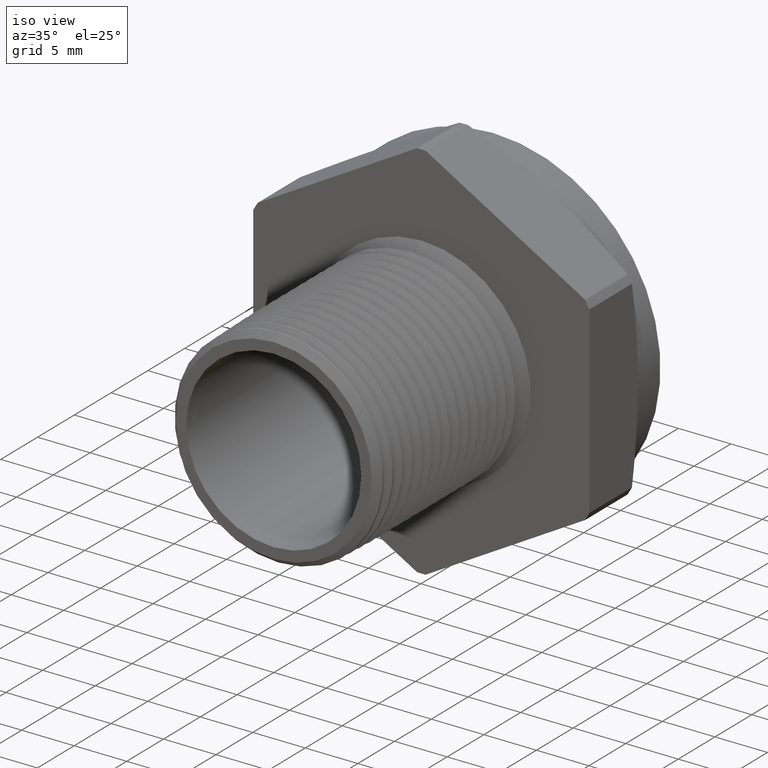
[diagram: clean part render]
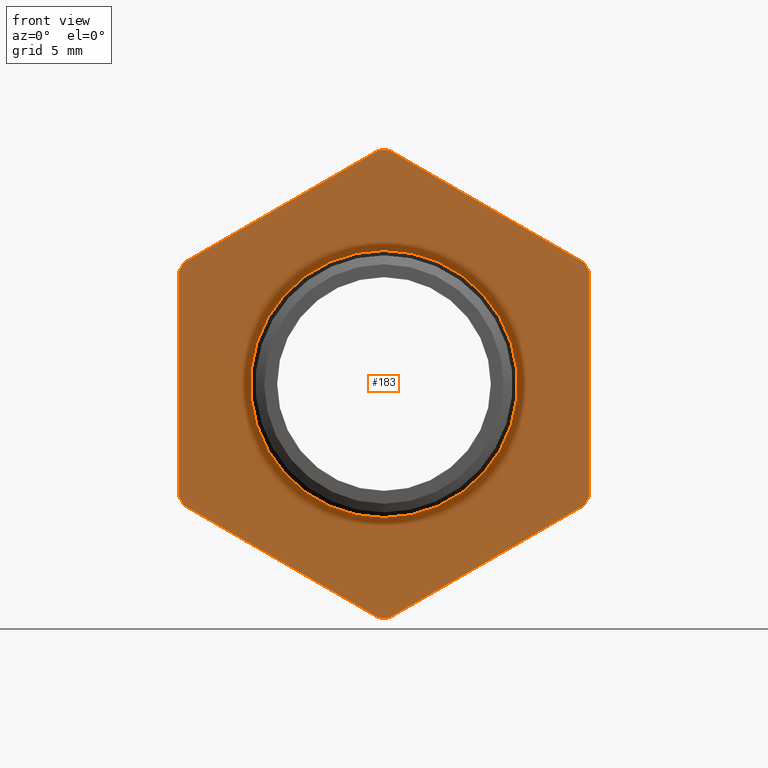
[diagram: tour spotlight — one face highlighted and labeled with its STEP entity id]
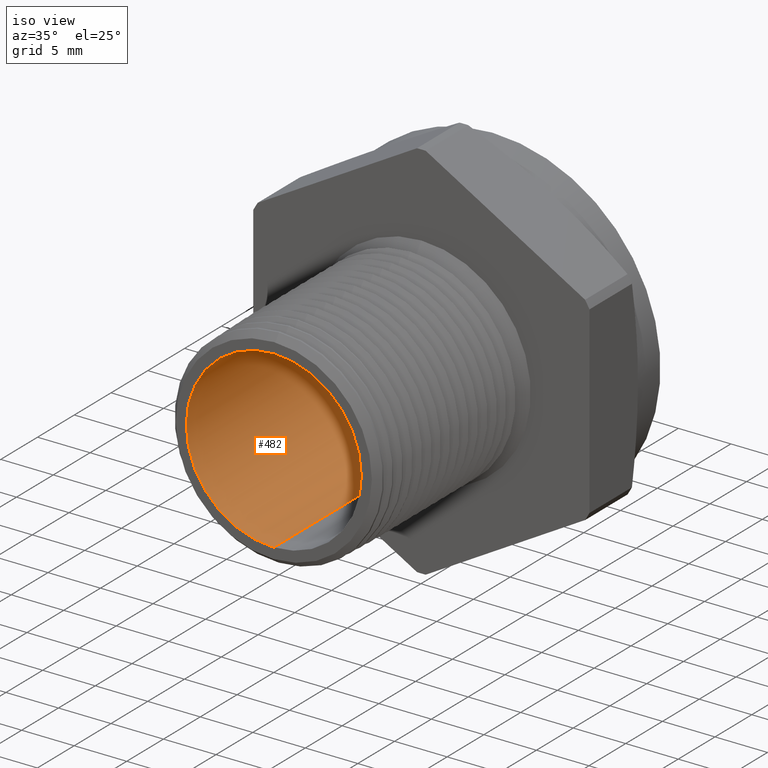
[diagram: tour spotlight — one face highlighted and labeled with its STEP entity id]
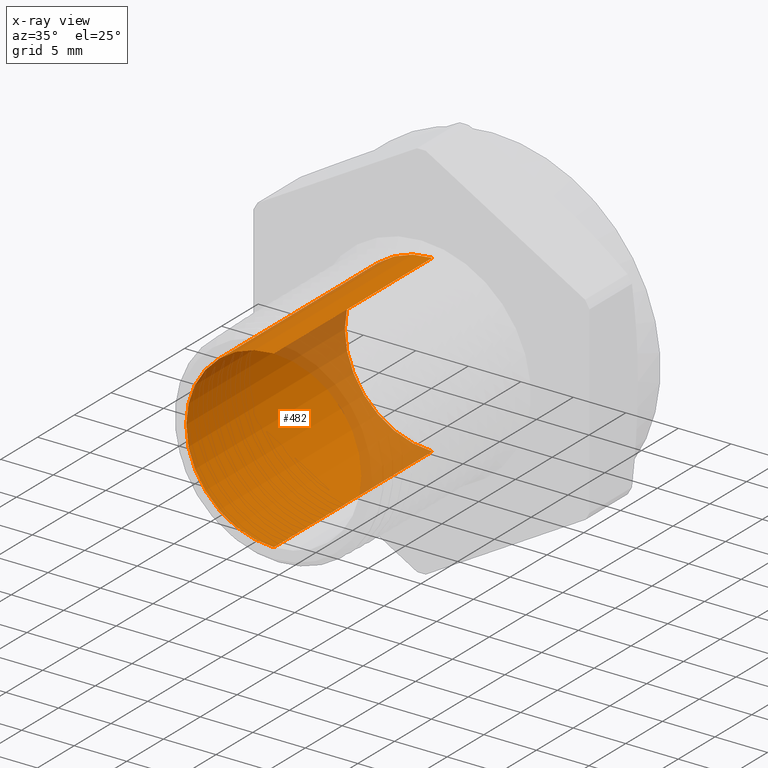
[diagram: x-ray of the same camera — body ghosted, this tour face saturated]
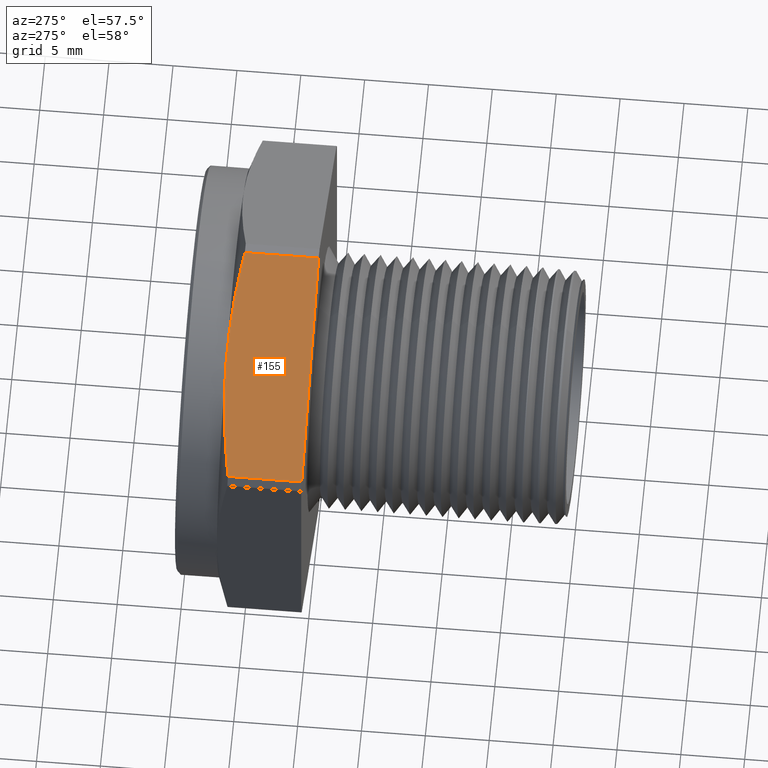
[diagram: tour spotlight — one face highlighted and labeled with its STEP entity id]
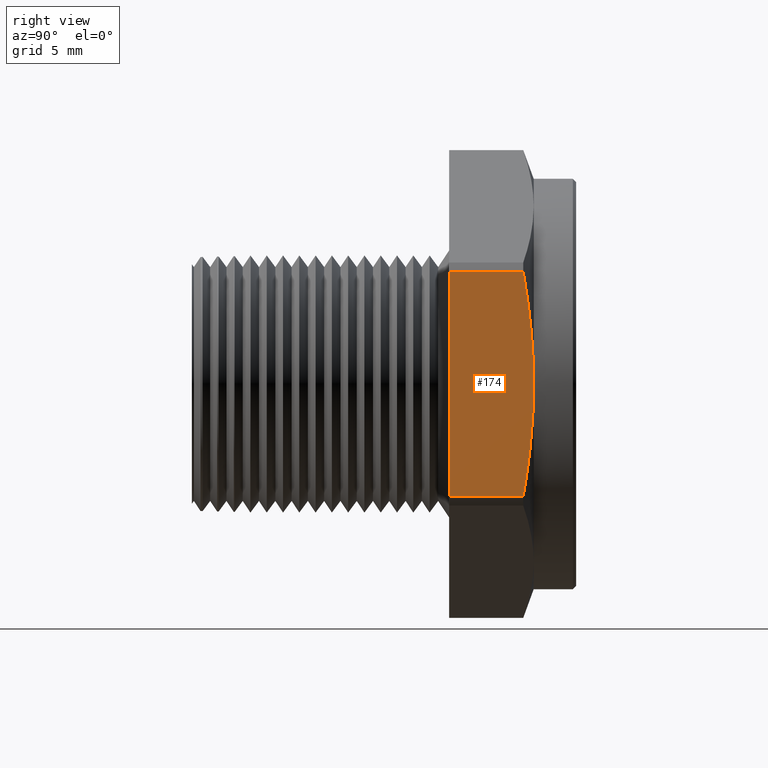
[diagram: tour spotlight — one face highlighted and labeled with its STEP entity id]
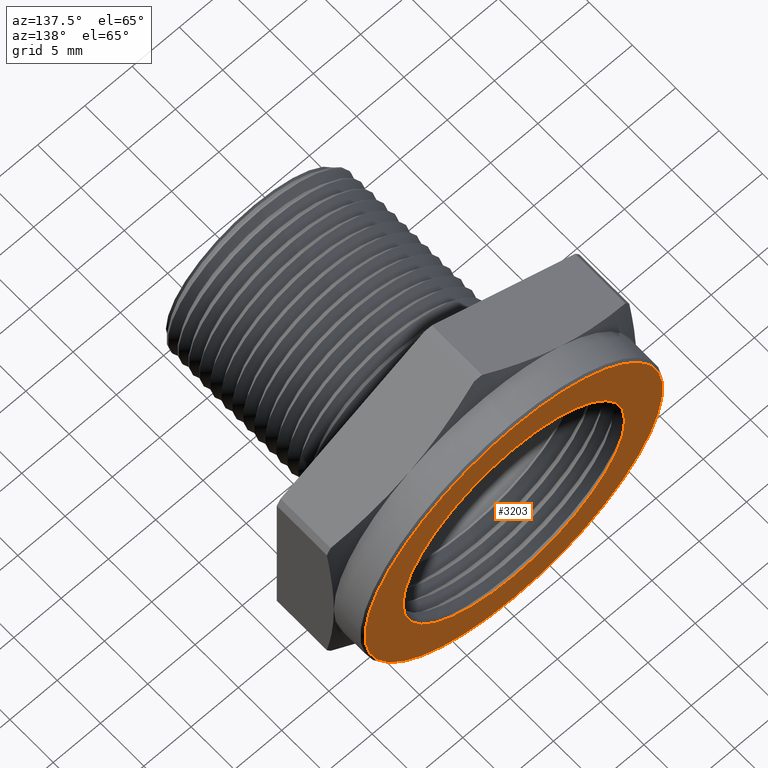
[diagram: tour spotlight — one face highlighted and labeled with its STEP entity id]
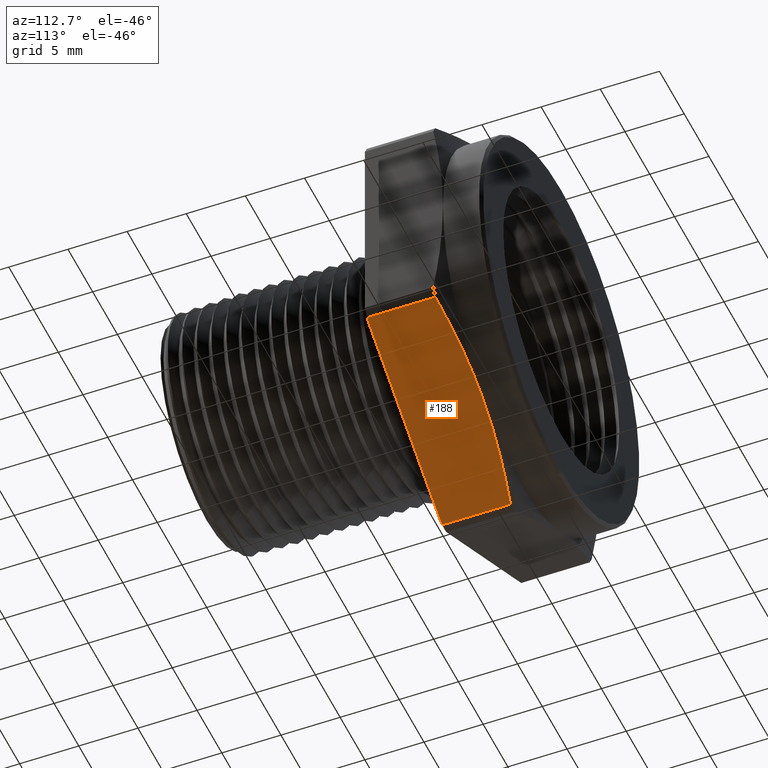
[diagram: tour spotlight — one face highlighted and labeled with its STEP entity id]
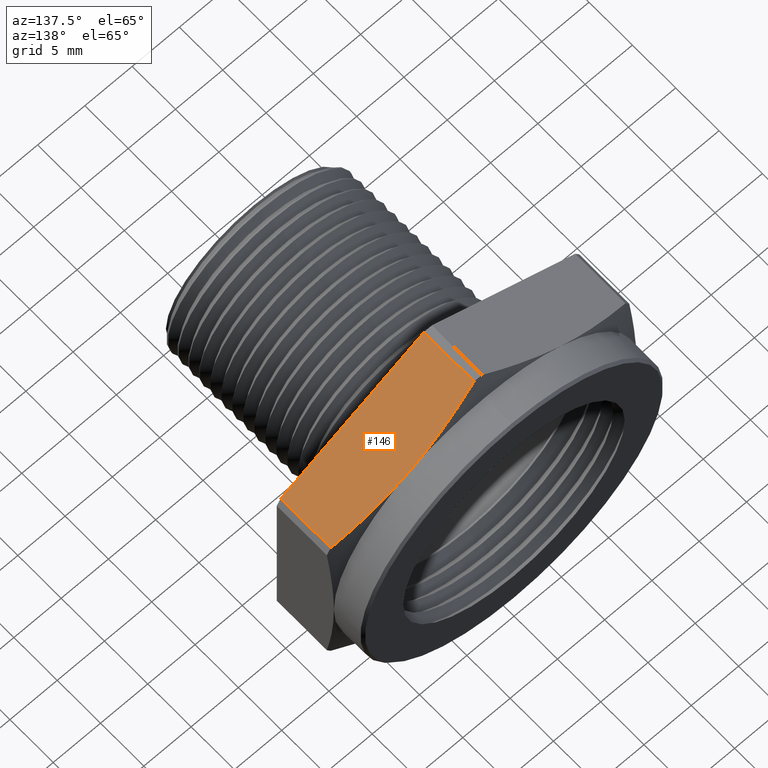
[diagram: tour spotlight — one face highlighted and labeled with its STEP entity id]
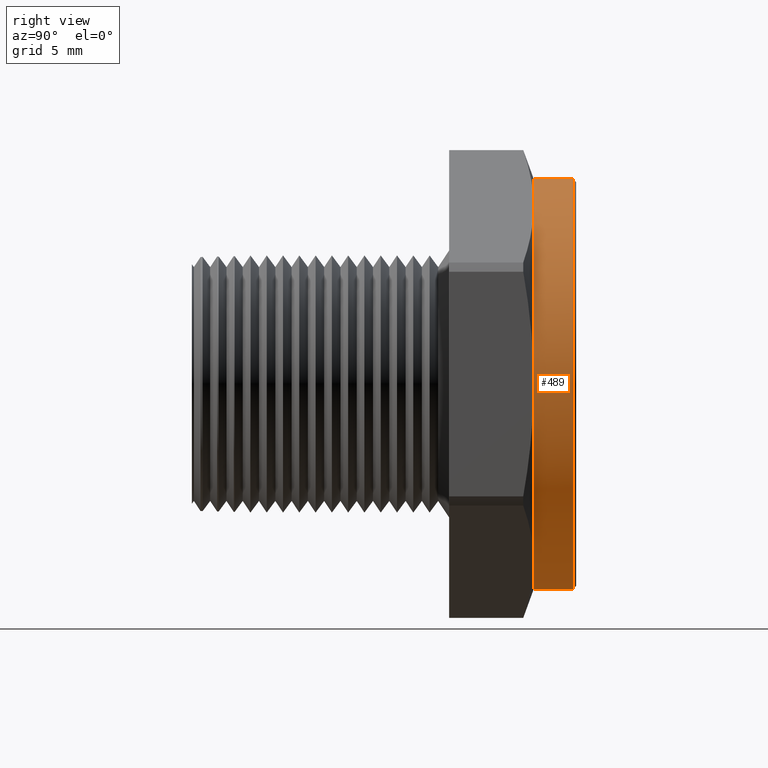
[diagram: tour spotlight — one face highlighted and labeled with its STEP entity id]
A machine part: a face-by-face anatomy tour. The part has 123 B-rep faces; the first image is the clean iso view, then the 8 largest visible faces are spotlighted one at a time (largest first), each with its STEP entity span.

Face 1 — front view, entity #183. In plain terms, the highlighted planar face has unit normal (0, -1, -0).
Definition (entity closure, byte-faithful):
#38 = VERTEX_POINT ( 'NONE', #1082 ) ;
#54 = VERTEX_POINT ( 'NONE', #1120 ) ;
#56 = EDGE_CURVE ( 'NONE', #77, #54, #1119, .T. ) ;
#61 = VERTEX_POINT ( 'NONE', #1104 ) ;
#77 = VERTEX_POINT ( 'NONE', #1133 ) ;
#87 = VERTEX_POINT ( 'NONE', #1174 ) ;
#89 = EDGE_CURVE ( 'NONE', #162, #87, #1173, .T. ) ;
#90 = EDGE_CURVE ( 'NONE', #111, #118, #1168, .T. ) ;
#95 = VERTEX_POINT ( 'NONE', #1219 ) ;
#102 = VERTEX_POINT ( 'NONE', #1207 ) ;
#104 = EDGE_CURVE ( 'NONE', #95, #102, #1206, .T. ) ;
#106 = EDGE_CURVE ( 'NONE', #538, #38, #1201, .T. ) ;
#111 = VERTEX_POINT ( 'NONE', #1247 ) ;
#118 = VERTEX_POINT ( 'NONE', #1235 ) ;
#123 = VERTEX_POINT ( 'NONE', #1229 ) ;
#125 = EDGE_CURVE ( 'NONE', #61, #123, #1227, .T. ) ;
#139 = EDGE_CURVE ( 'NONE', #87, #95, #1290, .T. ) ;
#154 = EDGE_CURVE ( 'NONE', #54, #162, #1321, .T. ) ;
#162 = VERTEX_POINT ( 'NONE', #1352 ) ;
#167 = ORIENTED_EDGE ( 'NONE', *, *, #125, .T. ) ;
#168 = ORIENTED_EDGE ( 'NONE', *, *, #182, .T. ) ;
#169 = ORIENTED_EDGE ( 'NONE', *, *, #56, .T. ) ;
#170 = ORIENTED_EDGE ( 'NONE', *, *, #154, .T. ) ;
#171 = ORIENTED_EDGE ( 'NONE', *, *, #89, .T. ) ;
#172 = ORIENTED_EDGE ( 'NONE', *, *, #139, .T. ) ;
#173 = ORIENTED_EDGE ( 'NONE', *, *, #104, .T. ) ;
#182 = EDGE_CURVE ( 'NONE', #123, #77, #1388, .T. ) ;
#183 = ADVANCED_FACE ( 'NONE', ( #1378, #1377 ), #1376, .T. ) ;
#184 = EDGE_LOOP ( 'NONE', ( #243, #245 ) ) ;
#187 = EDGE_CURVE ( 'NONE', #118, #549, #1374, .T. ) ;
#197 = EDGE_CURVE ( 'NONE', #38, #61, #1408, .T. ) ;
#203 = EDGE_CURVE ( 'NONE', #102, #111, #1397, .T. ) ;
#231 = ORIENTED_EDGE ( 'NONE', *, *, #203, .T. ) ;
#232 = ORIENTED_EDGE ( 'NONE', *, *, #90, .T. ) ;
#233 = ORIENTED_EDGE ( 'NONE', *, *, #187, .T. ) ;
#234 = ORIENTED_EDGE ( 'NONE', *, *, #540, .T. ) ;
#235 = ORIENTED_EDGE ( 'NONE', *, *, #106, .T. ) ;
#236 = ORIENTED_EDGE ( 'NONE', *, *, #197, .T. ) ;
#243 = ORIENTED_EDGE ( 'NONE', *, *, #244, .F. ) ;
#244 = EDGE_CURVE ( 'NONE', #953, #844, #1512, .T. ) ;
#245 = ORIENTED_EDGE ( 'NONE', *, *, #885, .F. ) ;
#246 = EDGE_LOOP ( 'NONE', ( #167, #168, #169, #170, #171, #172, #173, #231, #232, #233, #234, #235, #236 ) ) ;
#538 = VERTEX_POINT ( 'NONE', #1869 ) ;
#540 = EDGE_CURVE ( 'NONE', #549, #538, #1868, .T. ) ;
#549 = VERTEX_POINT ( 'NONE', #1910 ) ;
#844 = VERTEX_POINT ( 'NONE', #2471 ) ;
#885 = EDGE_CURVE ( 'NONE', #844, #953, #2519, .T. ) ;
#953 = VERTEX_POINT ( 'NONE', #2685 ) ;
#1082 = CARTESIAN_POINT ( 'NONE',  ( 0.01636405105881826000, 0.7900000000000000400, -0.7180135498950869200 ) ) ;
#1104 = CARTESIAN_POINT ( 'NONE',  ( 0.6136359489411814500, 0.7900000000000000400, -0.3731784588733059200 ) ) ;
#1115 = DIRECTION ( 'NONE',  ( 0.0000000000000000000, 0.0000000000000000000, -1.000000000000000000 ) ) ;
#1116 = DIRECTION ( 'NONE',  ( -0.0000000000000000000, -1.000000000000000000, -0.0000000000000000000 ) ) ;
#1117 = CARTESIAN_POINT ( 'NONE',  ( 0.0000000000000000000, 0.7900000000000000400, 0.0000000000000000000 ) ) ;
#1118 = AXIS2_PLACEMENT_3D ( 'NONE', #1117, #1116, #1115 ) ;
#1119 = CIRCLE ( 'NONE', #1118, 0.7181999999999999500 ) ;
#1120 = CARTESIAN_POINT ( 'NONE',  ( 0.6136359489411813400, 0.7900000000000000400, 0.3731784588733060800 ) ) ;
#1133 = CARTESIAN_POINT ( 'NONE',  ( 0.6299999999999997800, 0.7900000000000000400, 0.3448350910217812800 ) ) ;
#1164 = DIRECTION ( 'NONE',  ( 0.0000000000000000000, 0.0000000000000000000, -1.000000000000000000 ) ) ;
#1165 = DIRECTION ( 'NONE',  ( -0.0000000000000000000, -1.000000000000000000, -0.0000000000000000000 ) ) ;
#1166 = CARTESIAN_POINT ( 'NONE',  ( 0.0000000000000000000, 0.7900000000000000400, 0.0000000000000000000 ) ) ;
#1167 = AXIS2_PLACEMENT_3D ( 'NONE', #1166, #1165, #1164 ) ;
#1168 = CIRCLE ( 'NONE', #1167, 0.7181999999999999500 ) ;
#1169 = DIRECTION ( 'NONE',  ( 0.0000000000000000000, 0.0000000000000000000, -1.000000000000000000 ) ) ;
#1170 = DIRECTION ( 'NONE',  ( -0.0000000000000000000, -1.000000000000000000, -0.0000000000000000000 ) ) ;
#1171 = CARTESIAN_POINT ( 'NONE',  ( 0.0000000000000000000, 0.7900000000000000400, 0.0000000000000000000 ) ) ;
#1172 = AXIS2_PLACEMENT_3D ( 'NONE', #1171, #1170, #1169 ) ;
#1173 = CIRCLE ( 'NONE', #1172, 0.7181999999999999500 ) ;
#1174 = CARTESIAN_POINT ( 'NONE',  ( -0.01636405105881823600, 0.7900000000000000400, 0.7180135498950867000 ) ) ;
#1197 = DIRECTION ( 'NONE',  ( 0.0000000000000000000, 0.0000000000000000000, -1.000000000000000000 ) ) ;
#1198 = DIRECTION ( 'NONE',  ( -0.0000000000000000000, -1.000000000000000000, -0.0000000000000000000 ) ) ;
#1199 = CARTESIAN_POINT ( 'NONE',  ( 0.0000000000000000000, 0.7900000000000000400, 0.0000000000000000000 ) ) ;
#1200 = AXIS2_PLACEMENT_3D ( 'NONE', #1199, #1198, #1197 ) ;
#1201 = CIRCLE ( 'NONE', #1200, 0.7181999999999999500 ) ;
#1202 = DIRECTION ( 'NONE',  ( 0.0000000000000000000, 0.0000000000000000000, -1.000000000000000000 ) ) ;
#1203 = DIRECTION ( 'NONE',  ( -0.0000000000000000000, -1.000000000000000000, -0.0000000000000000000 ) ) ;
#1204 = CARTESIAN_POINT ( 'NONE',  ( 0.0000000000000000000, 0.7900000000000000400, 0.0000000000000000000 ) ) ;
#1205 = AXIS2_PLACEMENT_3D ( 'NONE', #1204, #1203, #1202 ) ;
#1206 = CIRCLE ( 'NONE', #1205, 0.7181999999999999500 ) ;
#1207 = CARTESIAN_POINT ( 'NONE',  ( -0.6300000000000000000, 0.7900000000000000400, 0.3448350910217810600 ) ) ;
#1219 = CARTESIAN_POINT ( 'NONE',  ( -0.6136359489411815600, 0.7900000000000000400, 0.3731784588733058600 ) ) ;
#1226 = AXIS2_PLACEMENT_3D ( 'NONE', #3261, #3262, #3214 ) ;
#1227 = CIRCLE ( 'NONE', #1226, 0.7181999999999999500 ) ;
#1229 = CARTESIAN_POINT ( 'NONE',  ( 0.6299999999999997800, 0.7900000000000000400, -0.3448350910217812800 ) ) ;
#1235 = CARTESIAN_POINT ( 'NONE',  ( -0.6136359489411817900, 0.7900000000000000400, -0.3731784588733055900 ) ) ;
#1247 = CARTESIAN_POINT ( 'NONE',  ( -0.6300000000000000000, 0.7900000000000000400, -0.3448350910217811700 ) ) ;
#1287 = DIRECTION ( 'NONE',  ( -0.8660254037844388200, 0.0000000000000000000, -0.4999999999999998300 ) ) ;
#1288 = VECTOR ( 'NONE', #1287, 39.37007874015748100 ) ;
#1289 = CARTESIAN_POINT ( 'NONE',  ( 1.278829424731956000E-016, 0.7900000000000000400, 0.7274613391789283000 ) ) ;
#1290 = LINE ( 'NONE', #1289, #1288 ) ;
#1312 = DIRECTION ( 'NONE',  ( -0.8660254037844388200, 0.0000000000000000000, 0.4999999999999998300 ) ) ;
#1313 = VECTOR ( 'NONE', #1312, 39.37007874015748100 ) ;
#1320 = CARTESIAN_POINT ( 'NONE',  ( 0.6299999999999997800, 0.7900000000000000400, 0.3637306695894644300 ) ) ;
#1321 = LINE ( 'NONE', #1320, #1313 ) ;
#1352 = CARTESIAN_POINT ( 'NONE',  ( 0.01636405105881816700, 0.7900000000000000400, 0.7180135498950870300 ) ) ;
#1368 = DIRECTION ( 'NONE',  ( 0.8660254037844386000, 0.0000000000000000000, -0.5000000000000000000 ) ) ;
#1369 = VECTOR ( 'NONE', #1368, 39.37007874015748900 ) ;
#1370 = CARTESIAN_POINT ( 'NONE',  ( -0.6300000000000000000, 0.7900000000000000400, -0.3637306695894641000 ) ) ;
#1371 = DIRECTION ( 'NONE',  ( 0.0000000000000000000, 0.0000000000000000000, -1.000000000000000000 ) ) ;
#1372 = DIRECTION ( 'NONE',  ( 0.0000000000000000000, -1.000000000000000000, -0.0000000000000000000 ) ) ;
#1373 = AXIS2_PLACEMENT_3D ( 'NONE', #1375, #1372, #1371 ) ;
#1374 = LINE ( 'NONE', #1370, #1369 ) ;
#1375 = CARTESIAN_POINT ( 'NONE',  ( 0.4099999999999999800, 0.7900000000000000400, 0.0000000000000000000 ) ) ;
#1376 = PLANE ( 'NONE',  #1373 ) ;
#1377 = FACE_OUTER_BOUND ( 'NONE', #246, .T. ) ;
#1378 = FACE_BOUND ( 'NONE', #184, .T. ) ;
#1379 = DIRECTION ( 'NONE',  ( 0.0000000000000000000, 0.0000000000000000000, 1.000000000000000000 ) ) ;
#1380 = VECTOR ( 'NONE', #1379, 39.37007874015748100 ) ;
#1387 = CARTESIAN_POINT ( 'NONE',  ( 0.6299999999999997800, 0.7900000000000000400, -0.3637306695894643700 ) ) ;
#1388 = LINE ( 'NONE', #1387, #1380 ) ;
#1396 = CARTESIAN_POINT ( 'NONE',  ( -0.6300000000000000000, 0.7900000000000000400, 0.3637306695894642600 ) ) ;
#1397 = LINE ( 'NONE', #1396, #1448 ) ;
#1399 = DIRECTION ( 'NONE',  ( 0.8660254037844388200, 0.0000000000000000000, 0.4999999999999998300 ) ) ;
#1400 = VECTOR ( 'NONE', #1399, 39.37007874015748100 ) ;
#1407 = CARTESIAN_POINT ( 'NONE',  ( -6.483492480693291100E-018, 0.7900000000000000400, -0.7274613391789283000 ) ) ;
#1408 = LINE ( 'NONE', #1407, #1400 ) ;
#1447 = DIRECTION ( 'NONE',  ( 0.0000000000000000000, 0.0000000000000000000, -1.000000000000000000 ) ) ;
#1448 = VECTOR ( 'NONE', #1447, 39.37007874015748100 ) ;
#1508 = DIRECTION ( 'NONE',  ( 0.0000000000000000000, 0.0000000000000000000, -1.000000000000000000 ) ) ;
#1509 = DIRECTION ( 'NONE',  ( -0.0000000000000000000, -1.000000000000000000, -0.0000000000000000000 ) ) ;
#1510 = CARTESIAN_POINT ( 'NONE',  ( 0.0000000000000000000, 0.7900000000000003700, 0.0000000000000000000 ) ) ;
#1511 = AXIS2_PLACEMENT_3D ( 'NONE', #1510, #1509, #1508 ) ;
#1512 = CIRCLE ( 'NONE', #1511, 0.4099999999999999800 ) ;
#1864 = DIRECTION ( 'NONE',  ( 0.0000000000000000000, 0.0000000000000000000, -1.000000000000000000 ) ) ;
#1865 = DIRECTION ( 'NONE',  ( -0.0000000000000000000, -1.000000000000000000, -0.0000000000000000000 ) ) ;
#1866 = CARTESIAN_POINT ( 'NONE',  ( 0.0000000000000000000, 0.7900000000000000400, 0.0000000000000000000 ) ) ;
#1867 = AXIS2_PLACEMENT_3D ( 'NONE', #1866, #1865, #1864 ) ;
#1868 = CIRCLE ( 'NONE', #1867, 0.7181999999999999500 ) ;
#1869 = CARTESIAN_POINT ( 'NONE',  ( 0.0000000000000000000, 0.7900000000000000400, -0.7181999999999999500 ) ) ;
#1910 = CARTESIAN_POINT ( 'NONE',  ( -0.01636405105881802800, 0.7900000000000000400, -0.7180135498950870300 ) ) ;
#2471 = CARTESIAN_POINT ( 'NONE',  ( 5.021051876504148100E-017, 0.7900000000000003700, -0.4099999999999999800 ) ) ;
#2515 = DIRECTION ( 'NONE',  ( 0.0000000000000000000, 0.0000000000000000000, -1.000000000000000000 ) ) ;
#2516 = DIRECTION ( 'NONE',  ( -0.0000000000000000000, -1.000000000000000000, -0.0000000000000000000 ) ) ;
#2517 = CARTESIAN_POINT ( 'NONE',  ( 0.0000000000000000000, 0.7900000000000003700, 0.0000000000000000000 ) ) ;
#2518 = AXIS2_PLACEMENT_3D ( 'NONE', #2517, #2516, #2515 ) ;
#2519 = CIRCLE ( 'NONE', #2518, 0.4099999999999999800 ) ;
#2685 = CARTESIAN_POINT ( 'NONE',  ( 0.0000000000000000000, 0.7900000000000003700, 0.4099999999999999800 ) ) ;
#3214 = DIRECTION ( 'NONE',  ( 0.0000000000000000000, 0.0000000000000000000, -1.000000000000000000 ) ) ;
#3261 = CARTESIAN_POINT ( 'NONE',  ( 0.0000000000000000000, 0.7900000000000000400, 0.0000000000000000000 ) ) ;
#3262 = DIRECTION ( 'NONE',  ( -0.0000000000000000000, -1.000000000000000000, -0.0000000000000000000 ) ) ;

Face 2 — iso view, entity #482. An x-ray twin of the same camera follows (body ghosted, this face saturated) — the face is partly hidden behind the body. In plain terms, the highlighted cylindrical surface (partial cylindrical patch) has radius 8.3312 mm, axis along (-0, -1, -0).
Definition (entity closure, byte-faithful):
#477 = ORIENTED_EDGE ( 'NONE', *, *, #478, .F. ) ;
#478 = EDGE_CURVE ( 'NONE', #485, #547, #1738, .T. ) ;
#479 = ORIENTED_EDGE ( 'NONE', *, *, #548, .T. ) ;
#480 = VERTEX_POINT ( 'NONE', #1734 ) ;
#481 = ORIENTED_EDGE ( 'NONE', *, *, #486, .F. ) ;
#482 = ADVANCED_FACE ( 'NONE', ( #1733 ), #1732, .F. ) ;
#483 = EDGE_LOOP ( 'NONE', ( #481, #541, #479, #477 ) ) ;
#484 = VERTEX_POINT ( 'NONE', #1794 ) ;
#485 = VERTEX_POINT ( 'NONE', #1789 ) ;
#486 = EDGE_CURVE ( 'NONE', #484, #485, #1788, .T. ) ;
#541 = ORIENTED_EDGE ( 'NONE', *, *, #546, .T. ) ;
#546 = EDGE_CURVE ( 'NONE', #484, #480, #1920, .T. ) ;
#547 = VERTEX_POINT ( 'NONE', #1916 ) ;
#548 = EDGE_CURVE ( 'NONE', #480, #547, #1915, .T. ) ;
#1732 = CYLINDRICAL_SURFACE ( 'NONE', #1793, 0.3279999999999999600 ) ;
#1733 = FACE_OUTER_BOUND ( 'NONE', #483, .T. ) ;
#1734 = CARTESIAN_POINT ( 'NONE',  ( 4.016841501203318300E-017, 0.0000000000000000000, 0.3280000000000000100 ) ) ;
#1735 = DIRECTION ( 'NONE',  ( -0.0000000000000000000, -1.000000000000000000, -0.0000000000000000000 ) ) ;
#1736 = VECTOR ( 'NONE', #1735, 39.37007874015748100 ) ;
#1737 = CARTESIAN_POINT ( 'NONE',  ( 0.0000000000000000000, 0.0000000000000000000, -0.3279999999999999600 ) ) ;
#1738 = LINE ( 'NONE', #1737, #1736 ) ;
#1784 = DIRECTION ( 'NONE',  ( 0.0000000000000000000, 0.0000000000000000000, -1.000000000000000000 ) ) ;
#1785 = DIRECTION ( 'NONE',  ( -0.0000000000000000000, -1.000000000000000000, -0.0000000000000000000 ) ) ;
#1786 = CARTESIAN_POINT ( 'NONE',  ( 0.0000000000000000000, 0.8489999999999999800, 0.0000000000000000000 ) ) ;
#1787 = AXIS2_PLACEMENT_3D ( 'NONE', #1786, #1785, #1784 ) ;
#1788 = CIRCLE ( 'NONE', #1787, 0.3279999999999999000 ) ;
#1789 = CARTESIAN_POINT ( 'NONE',  ( 0.0000000000000000000, 0.8489999999999999800, -0.3279999999999999000 ) ) ;
#1790 = DIRECTION ( 'NONE',  ( 0.0000000000000000000, 0.0000000000000000000, -1.000000000000000000 ) ) ;
#1791 = DIRECTION ( 'NONE',  ( -0.0000000000000000000, -1.000000000000000000, -0.0000000000000000000 ) ) ;
#1792 = CARTESIAN_POINT ( 'NONE',  ( 0.0000000000000000000, 0.0000000000000000000, 0.0000000000000000000 ) ) ;
#1793 = AXIS2_PLACEMENT_3D ( 'NONE', #1792, #1791, #1790 ) ;
#1794 = CARTESIAN_POINT ( 'NONE',  ( 4.016841501203317600E-017, 0.8489999999999999800, 0.3279999999999999000 ) ) ;
#1911 = DIRECTION ( 'NONE',  ( 0.0000000000000000000, 0.0000000000000000000, -1.000000000000000000 ) ) ;
#1912 = DIRECTION ( 'NONE',  ( -0.0000000000000000000, -1.000000000000000000, -0.0000000000000000000 ) ) ;
#1913 = CARTESIAN_POINT ( 'NONE',  ( 0.0000000000000000000, 0.0000000000000000000, 0.0000000000000000000 ) ) ;
#1914 = AXIS2_PLACEMENT_3D ( 'NONE', #1913, #1912, #1911 ) ;
#1915 = CIRCLE ( 'NONE', #1914, 0.3280000000000000100 ) ;
#1916 = CARTESIAN_POINT ( 'NONE',  ( 0.0000000000000000000, 0.0000000000000000000, -0.3280000000000000100 ) ) ;
#1917 = DIRECTION ( 'NONE',  ( -0.0000000000000000000, -1.000000000000000000, -0.0000000000000000000 ) ) ;
#1918 = VECTOR ( 'NONE', #1917, 39.37007874015748100 ) ;
#1919 = CARTESIAN_POINT ( 'NONE',  ( 4.016841501203317600E-017, 0.0000000000000000000, 0.3279999999999999600 ) ) ;
#1920 = LINE ( 'NONE', #1919, #1918 ) ;

Face 3 — auxiliary view, entity #155. In plain terms, the highlighted planar face has unit normal (-0.5, 0, 0.866).
Definition (entity closure, byte-faithful):
#86 = EDGE_CURVE ( 'NONE', #166, #87, #1178, .T. ) ;
#87 = VERTEX_POINT ( 'NONE', #1174 ) ;
#94 = EDGE_CURVE ( 'NONE', #95, #96, #1223, .T. ) ;
#95 = VERTEX_POINT ( 'NONE', #1219 ) ;
#96 = VERTEX_POINT ( 'NONE', #1218 ) ;
#132 = ORIENTED_EDGE ( 'NONE', *, *, #133, .T. ) ;
#133 = EDGE_CURVE ( 'NONE', #166, #134, #1256, .T. ) ;
#134 = VERTEX_POINT ( 'NONE', #1255 ) ;
#135 = ORIENTED_EDGE ( 'NONE', *, *, #136, .T. ) ;
#136 = EDGE_CURVE ( 'NONE', #134, #96, #1297, .T. ) ;
#137 = ORIENTED_EDGE ( 'NONE', *, *, #94, .F. ) ;
#138 = ORIENTED_EDGE ( 'NONE', *, *, #139, .F. ) ;
#139 = EDGE_CURVE ( 'NONE', #87, #95, #1290, .T. ) ;
#155 = ADVANCED_FACE ( 'NONE', ( #1311 ), #1309, .T. ) ;
#156 = EDGE_LOOP ( 'NONE', ( #157, #132, #135, #137, #138 ) ) ;
#157 = ORIENTED_EDGE ( 'NONE', *, *, #86, .F. ) ;
#166 = VERTEX_POINT ( 'NONE', #1351 ) ;
#1174 = CARTESIAN_POINT ( 'NONE',  ( -0.01636405105881823600, 0.7900000000000000400, 0.7180135498950867000 ) ) ;
#1175 = DIRECTION ( 'NONE',  ( -0.0000000000000000000, -1.000000000000000000, -0.0000000000000000000 ) ) ;
#1176 = VECTOR ( 'NONE', #1175, 39.37007874015748100 ) ;
#1177 = CARTESIAN_POINT ( 'NONE',  ( -0.01636405105881819800, 0.0000000000000000000, 0.7180135498950867000 ) ) ;
#1178 = LINE ( 'NONE', #1177, #1176 ) ;
#1218 = CARTESIAN_POINT ( 'NONE',  ( -0.6136359489411815600, 1.017497825337721200, 0.3731784588733058600 ) ) ;
#1219 = CARTESIAN_POINT ( 'NONE',  ( -0.6136359489411815600, 0.7900000000000000400, 0.3731784588733058600 ) ) ;
#1220 = DIRECTION ( 'NONE',  ( 0.0000000000000000000, 1.000000000000000000, 0.0000000000000000000 ) ) ;
#1221 = VECTOR ( 'NONE', #1220, 39.37007874015748100 ) ;
#1222 = CARTESIAN_POINT ( 'NONE',  ( -0.6136359489411815600, 0.0000000000000000000, 0.3731784588733058600 ) ) ;
#1223 = LINE ( 'NONE', #1222, #1221 ) ;
#1255 = CARTESIAN_POINT ( 'NONE',  ( -0.3149999999999998400, 1.049600000000000100, 0.5455960043841963100 ) ) ;
#1256 = B_SPLINE_CURVE_WITH_KNOTS ( 'NONE', 3,
 ( #1303, #1302, #1301, #1300, #1299, #1298 ),
 .UNSPECIFIED., .F., .F.,
 ( 4, 2, 4 ),
 ( 2.309401076771383300E-007, 0.004379636596084297500, 0.008759042252060918900 ),
 .UNSPECIFIED. ) ;
#1287 = DIRECTION ( 'NONE',  ( -0.8660254037844388200, 0.0000000000000000000, -0.4999999999999998300 ) ) ;
#1288 = VECTOR ( 'NONE', #1287, 39.37007874015748100 ) ;
#1289 = CARTESIAN_POINT ( 'NONE',  ( 1.278829424731956000E-016, 0.7900000000000000400, 0.7274613391789283000 ) ) ;
#1290 = LINE ( 'NONE', #1289, #1288 ) ;
#1291 = CARTESIAN_POINT ( 'NONE',  ( -0.6136359489411815600, 1.017497825337721200, 0.3731784588733058600 ) ) ;
#1292 = CARTESIAN_POINT ( 'NONE',  ( -0.5638632907843179600, 1.027541488170656600, 0.4019147164584541100 ) ) ;
#1293 = CARTESIAN_POINT ( 'NONE',  ( -0.5140906326274543600, 1.035645883142550800, 0.4306509740436025300 ) ) ;
#1294 = CARTESIAN_POINT ( 'NONE',  ( -0.4145453163137271500, 1.046689541038624100, 0.4881234892138994200 ) ) ;
#1295 = CARTESIAN_POINT ( 'NONE',  ( -0.3647726581568633800, 1.049599999999999900, 0.5168597467990478900 ) ) ;
#1296 = CARTESIAN_POINT ( 'NONE',  ( -0.3149999999999998400, 1.049600000000000100, 0.5455960043841963100 ) ) ;
#1297 = B_SPLINE_CURVE_WITH_KNOTS ( 'NONE', 3,
 ( #1296, #1295, #1294, #1293, #1292, #1291 ),
 .UNSPECIFIED., .F., .F.,
 ( 4, 2, 4 ),
 ( 0.008759042252060918900, 0.01313844790803753900, 0.01751785356401415800 ),
 .UNSPECIFIED. ) ;
#1298 = CARTESIAN_POINT ( 'NONE',  ( -0.3149999999999998400, 1.049600000000000100, 0.5455960043841963100 ) ) ;
#1299 = CARTESIAN_POINT ( 'NONE',  ( -0.2652273418431363400, 1.049600000000000300, 0.5743322619693447300 ) ) ;
#1300 = CARTESIAN_POINT ( 'NONE',  ( -0.2154546836862725700, 1.046689541038623900, 0.6030685195544931400 ) ) ;
#1301 = CARTESIAN_POINT ( 'NONE',  ( -0.1159093673725453800, 1.035645883142550800, 0.6605410347247899800 ) ) ;
#1302 = CARTESIAN_POINT ( 'NONE',  ( -0.06613670921568176600, 1.027541488170656400, 0.6892772923099386200 ) ) ;
#1303 = CARTESIAN_POINT ( 'NONE',  ( -0.01636405105881818700, 1.017497825337721200, 0.7180135498950869200 ) ) ;
#1305 = DIRECTION ( 'NONE',  ( 0.8660254037844388200, 0.0000000000000000000, 0.4999999999999998300 ) ) ;
#1306 = DIRECTION ( 'NONE',  ( -0.4999999999999998300, 0.0000000000000000000, 0.8660254037844388200 ) ) ;
#1307 = CARTESIAN_POINT ( 'NONE',  ( 1.278829424731956000E-016, 1.179999999999999900, 0.7274613391789283000 ) ) ;
#1308 = AXIS2_PLACEMENT_3D ( 'NONE', #1307, #1306, #1305 ) ;
#1309 = PLANE ( 'NONE',  #1308 ) ;
#1311 = FACE_OUTER_BOUND ( 'NONE', #156, .T. ) ;
#1351 = CARTESIAN_POINT ( 'NONE',  ( -0.01636405105881818700, 1.017497825337721200, 0.7180135498950869200 ) ) ;

Face 4 — right view, entity #174. In plain terms, the highlighted planar face has unit normal (1, 0, 0).
Definition (entity closure, byte-faithful):
#76 = EDGE_CURVE ( 'NONE', #77, #78, #1137, .T. ) ;
#77 = VERTEX_POINT ( 'NONE', #1133 ) ;
#78 = VERTEX_POINT ( 'NONE', #1132 ) ;
#120 = VERTEX_POINT ( 'NONE', #1234 ) ;
#122 = EDGE_CURVE ( 'NONE', #120, #123, #1233, .T. ) ;
#123 = VERTEX_POINT ( 'NONE', #1229 ) ;
#174 = ADVANCED_FACE ( 'NONE', ( #1345 ), #1344, .T. ) ;
#175 = ORIENTED_EDGE ( 'NONE', *, *, #122, .F. ) ;
#176 = ORIENTED_EDGE ( 'NONE', *, *, #177, .T. ) ;
#177 = EDGE_CURVE ( 'NONE', #120, #499, #1339, .T. ) ;
#178 = ORIENTED_EDGE ( 'NONE', *, *, #179, .T. ) ;
#179 = EDGE_CURVE ( 'NONE', #499, #78, #1389, .T. ) ;
#180 = ORIENTED_EDGE ( 'NONE', *, *, #76, .F. ) ;
#181 = ORIENTED_EDGE ( 'NONE', *, *, #182, .F. ) ;
#182 = EDGE_CURVE ( 'NONE', #123, #77, #1388, .T. ) ;
#198 = EDGE_LOOP ( 'NONE', ( #175, #176, #178, #180, #181 ) ) ;
#499 = VERTEX_POINT ( 'NONE', #1819 ) ;
#1132 = CARTESIAN_POINT ( 'NONE',  ( 0.6299999999999997800, 1.017497825337721200, 0.3448350910217812800 ) ) ;
#1133 = CARTESIAN_POINT ( 'NONE',  ( 0.6299999999999997800, 0.7900000000000000400, 0.3448350910217812800 ) ) ;
#1134 = DIRECTION ( 'NONE',  ( 0.0000000000000000000, 1.000000000000000000, 0.0000000000000000000 ) ) ;
#1135 = VECTOR ( 'NONE', #1134, 39.37007874015748100 ) ;
#1136 = CARTESIAN_POINT ( 'NONE',  ( 0.6299999999999997800, 0.0000000000000000000, 0.3448350910217812800 ) ) ;
#1137 = LINE ( 'NONE', #1136, #1135 ) ;
#1229 = CARTESIAN_POINT ( 'NONE',  ( 0.6299999999999997800, 0.7900000000000000400, -0.3448350910217812800 ) ) ;
#1230 = DIRECTION ( 'NONE',  ( -0.0000000000000000000, -1.000000000000000000, -0.0000000000000000000 ) ) ;
#1231 = VECTOR ( 'NONE', #1230, 39.37007874015748100 ) ;
#1232 = CARTESIAN_POINT ( 'NONE',  ( 0.6299999999999997800, 0.0000000000000000000, -0.3448350910217812800 ) ) ;
#1233 = LINE ( 'NONE', #1232, #1231 ) ;
#1234 = CARTESIAN_POINT ( 'NONE',  ( 0.6299999999999997800, 1.017497825337724000, -0.3448350910217832800 ) ) ;
#1334 = CARTESIAN_POINT ( 'NONE',  ( 0.6299999999999997800, 1.049600000000000100, -0.05739933409488748300 ) ) ;
#1335 = CARTESIAN_POINT ( 'NONE',  ( 0.6299999999999996700, 1.046696328599630200, -0.1148754713768109200 ) ) ;
#1336 = CARTESIAN_POINT ( 'NONE',  ( 0.6299999999999997800, 1.035638422488654800, -0.2299666252904038200 ) ) ;
#1337 = CARTESIAN_POINT ( 'NONE',  ( 0.6299999999999996700, 1.027481369573870000, -0.2877065904827284000 ) ) ;
#1338 = CARTESIAN_POINT ( 'NONE',  ( 0.6299999999999997800, 1.017497825337724000, -0.3448350910217832800 ) ) ;
#1339 = B_SPLINE_CURVE_WITH_KNOTS ( 'NONE', 3,
 ( #1338, #1337, #1336, #1335, #1334, #1390 ),
 .UNSPECIFIED., .F., .F.,
 ( 4, 2, 4 ),
 ( 0.01574533626411563100, 0.02015551002238699000, 0.02456568378065835200 ),
 .UNSPECIFIED. ) ;
#1340 = DIRECTION ( 'NONE',  ( 0.0000000000000000000, 0.0000000000000000000, -1.000000000000000000 ) ) ;
#1341 = DIRECTION ( 'NONE',  ( 1.000000000000000000, 0.0000000000000000000, 0.0000000000000000000 ) ) ;
#1342 = CARTESIAN_POINT ( 'NONE',  ( 0.6299999999999997800, 1.179999999999999900, -0.3637306695894643700 ) ) ;
#1343 = AXIS2_PLACEMENT_3D ( 'NONE', #1342, #1341, #1340 ) ;
#1344 = PLANE ( 'NONE',  #1343 ) ;
#1345 = FACE_OUTER_BOUND ( 'NONE', #198, .T. ) ;
#1379 = DIRECTION ( 'NONE',  ( 0.0000000000000000000, 0.0000000000000000000, 1.000000000000000000 ) ) ;
#1380 = VECTOR ( 'NONE', #1379, 39.37007874015748100 ) ;
#1381 = CARTESIAN_POINT ( 'NONE',  ( 0.6299999999999997800, 1.017497825337721200, 0.3448350910217812800 ) ) ;
#1382 = CARTESIAN_POINT ( 'NONE',  ( 0.6299999999999997800, 1.027519893866796700, 0.2874861442126306300 ) ) ;
#1383 = CARTESIAN_POINT ( 'NONE',  ( 0.6299999999999996700, 1.035621022296282700, 0.2300863878243605300 ) ) ;
#1384 = CARTESIAN_POINT ( 'NONE',  ( 0.6299999999999997800, 1.046675755967306600, 0.1151507211475807500 ) ) ;
#1385 = CARTESIAN_POINT ( 'NONE',  ( 0.6299999999999996700, 1.049599999999999900, 0.05761403424419141900 ) ) ;
#1386 = CARTESIAN_POINT ( 'NONE',  ( 0.6299999999999997800, 1.049600000000000100, 0.0000000000000000000 ) ) ;
#1387 = CARTESIAN_POINT ( 'NONE',  ( 0.6299999999999997800, 0.7900000000000000400, -0.3637306695894643700 ) ) ;
#1388 = LINE ( 'NONE', #1387, #1380 ) ;
#1389 = B_SPLINE_CURVE_WITH_KNOTS ( 'NONE', 3,
 ( #1386, #1385, #1384, #1383, #1382, #1381 ),
 .UNSPECIFIED., .F., .F.,
 ( 4, 2, 4 ),
 ( 0.02456568378065835200, 0.02899235363560552500, 0.03341902349055270200 ),
 .UNSPECIFIED. ) ;
#1390 = CARTESIAN_POINT ( 'NONE',  ( 0.6299999999999997800, 1.049600000000000100, 0.0000000000000000000 ) ) ;
#1819 = CARTESIAN_POINT ( 'NONE',  ( 0.6299999999999997800, 1.049600000000000100, 0.0000000000000000000 ) ) ;

Face 5 — auxiliary view, entity #3203. In plain terms, the highlighted planar face has unit normal (0, 1, 0).
Definition (entity closure, byte-faithful):
#644 = EDGE_CURVE ( 'NONE', #645, #646, #2099, .T. ) ;
#645 = VERTEX_POINT ( 'NONE', #2094 ) ;
#646 = VERTEX_POINT ( 'NONE', #2093 ) ;
#948 = VERTEX_POINT ( 'NONE', #2692 ) ;
#950 = EDGE_CURVE ( 'NONE', #951, #948, #2691, .T. ) ;
#951 = VERTEX_POINT ( 'NONE', #2686 ) ;
#2093 = CARTESIAN_POINT ( 'NONE',  ( 0.0000000000000000000, 1.179999999999999900, -0.6199999999999996600 ) ) ;
#2094 = CARTESIAN_POINT ( 'NONE',  ( 7.654042494670955400E-017, 1.179999999999999900, 0.6199999999999996600 ) ) ;
#2095 = DIRECTION ( 'NONE',  ( 0.0000000000000000000, 0.0000000000000000000, 1.000000000000000000 ) ) ;
#2096 = DIRECTION ( 'NONE',  ( 0.0000000000000000000, 1.000000000000000000, 0.0000000000000000000 ) ) ;
#2097 = CARTESIAN_POINT ( 'NONE',  ( 0.0000000000000000000, 1.179999999999999900, 0.0000000000000000000 ) ) ;
#2098 = AXIS2_PLACEMENT_3D ( 'NONE', #2097, #2096, #2095 ) ;
#2099 = CIRCLE ( 'NONE', #2098, 0.6199999999999996600 ) ;
#2686 = CARTESIAN_POINT ( 'NONE',  ( 5.827061549590442500E-017, 1.179999999999999900, 0.4616313689216302000 ) ) ;
#2687 = DIRECTION ( 'NONE',  ( 0.0000000000000000000, 0.0000000000000000000, 1.000000000000000000 ) ) ;
#2688 = DIRECTION ( 'NONE',  ( -0.0000000000000000000, -1.000000000000000000, -0.0000000000000000000 ) ) ;
#2689 = CARTESIAN_POINT ( 'NONE',  ( 0.0000000000000000000, 1.179999999999999900, 0.0000000000000000000 ) ) ;
#2690 = AXIS2_PLACEMENT_3D ( 'NONE', #2689, #2688, #2687 ) ;
#2691 = CIRCLE ( 'NONE', #2690, 0.4616313689216302000 ) ;
#2692 = CARTESIAN_POINT ( 'NONE',  ( 0.0000000000000000000, 1.179999999999999900, -0.4616313689216302000 ) ) ;
#2790 = DIRECTION ( 'NONE',  ( 0.0000000000000000000, 0.0000000000000000000, 1.000000000000000000 ) ) ;
#2791 = DIRECTION ( 'NONE',  ( -0.0000000000000000000, -1.000000000000000000, -0.0000000000000000000 ) ) ;
#2792 = CARTESIAN_POINT ( 'NONE',  ( 0.0000000000000000000, 1.179999999999999900, 0.0000000000000000000 ) ) ;
#2793 = AXIS2_PLACEMENT_3D ( 'NONE', #2792, #2791, #2790 ) ;
#2798 = CIRCLE ( 'NONE', #2793, 0.4616313689216302000 ) ;
#2837 = DIRECTION ( 'NONE',  ( 0.0000000000000000000, -0.0000000000000000000, 1.000000000000000000 ) ) ;
#2838 = DIRECTION ( 'NONE',  ( 0.0000000000000000000, 1.000000000000000000, 0.0000000000000000000 ) ) ;
#2839 = AXIS2_PLACEMENT_3D ( 'NONE', #2841, #2838, #2837 ) ;
#2841 = CARTESIAN_POINT ( 'NONE',  ( 0.6300000000000000000, 1.179999999999999900, 0.0000000000000000000 ) ) ;
#2842 = PLANE ( 'NONE',  #2839 ) ;
#2843 = FACE_BOUND ( 'NONE', #3199, .T. ) ;
#2844 = FACE_OUTER_BOUND ( 'NONE', #3272, .T. ) ;
#2850 = DIRECTION ( 'NONE',  ( 0.0000000000000000000, 0.0000000000000000000, 1.000000000000000000 ) ) ;
#2851 = DIRECTION ( 'NONE',  ( 0.0000000000000000000, 1.000000000000000000, 0.0000000000000000000 ) ) ;
#2852 = CARTESIAN_POINT ( 'NONE',  ( 0.0000000000000000000, 1.179999999999999900, 0.0000000000000000000 ) ) ;
#2853 = AXIS2_PLACEMENT_3D ( 'NONE', #2852, #2851, #2850 ) ;
#2854 = CIRCLE ( 'NONE', #2853, 0.6199999999999996600 ) ;
#3195 = ORIENTED_EDGE ( 'NONE', *, *, #950, .T. ) ;
#3196 = ORIENTED_EDGE ( 'NONE', *, *, #644, .T. ) ;
#3197 = EDGE_CURVE ( 'NONE', #948, #951, #2798, .T. ) ;
#3198 = ORIENTED_EDGE ( 'NONE', *, *, #3197, .T. ) ;
#3199 = EDGE_LOOP ( 'NONE', ( #3198, #3195 ) ) ;
#3200 = EDGE_CURVE ( 'NONE', #646, #645, #2854, .T. ) ;
#3201 = ORIENTED_EDGE ( 'NONE', *, *, #3200, .T. ) ;
#3203 = ADVANCED_FACE ( 'NONE', ( #2844, #2843 ), #2842, .T. ) ;
#3272 = EDGE_LOOP ( 'NONE', ( #3201, #3196 ) ) ;

Face 6 — auxiliary view, entity #188. In plain terms, the highlighted planar face has unit normal (0.5, 0, -0.866).
Definition (entity closure, byte-faithful):
#38 = VERTEX_POINT ( 'NONE', #1082 ) ;
#39 = EDGE_CURVE ( 'NONE', #48, #38, #1081, .T. ) ;
#48 = VERTEX_POINT ( 'NONE', #1068 ) ;
#60 = EDGE_CURVE ( 'NONE', #61, #62, #1108, .T. ) ;
#61 = VERTEX_POINT ( 'NONE', #1104 ) ;
#62 = VERTEX_POINT ( 'NONE', #1103 ) ;
#188 = ADVANCED_FACE ( 'NONE', ( #1367 ), #1366, .T. ) ;
#189 = EDGE_LOOP ( 'NONE', ( #190, #191, #193, #195, #196 ) ) ;
#190 = ORIENTED_EDGE ( 'NONE', *, *, #39, .F. ) ;
#191 = ORIENTED_EDGE ( 'NONE', *, *, #192, .T. ) ;
#192 = EDGE_CURVE ( 'NONE', #48, #492, #1361, .T. ) ;
#193 = ORIENTED_EDGE ( 'NONE', *, *, #194, .T. ) ;
#194 = EDGE_CURVE ( 'NONE', #492, #62, #1409, .T. ) ;
#195 = ORIENTED_EDGE ( 'NONE', *, *, #60, .F. ) ;
#196 = ORIENTED_EDGE ( 'NONE', *, *, #197, .F. ) ;
#197 = EDGE_CURVE ( 'NONE', #38, #61, #1408, .T. ) ;
#492 = VERTEX_POINT ( 'NONE', #1772 ) ;
#1068 = CARTESIAN_POINT ( 'NONE',  ( 0.01636405105881827100, 1.017497825337721400, -0.7180135498950869200 ) ) ;
#1078 = DIRECTION ( 'NONE',  ( -0.0000000000000000000, -1.000000000000000000, -0.0000000000000000000 ) ) ;
#1079 = VECTOR ( 'NONE', #1078, 39.37007874015748100 ) ;
#1080 = CARTESIAN_POINT ( 'NONE',  ( 0.01636405105881819800, 0.0000000000000000000, -0.7180135498950867000 ) ) ;
#1081 = LINE ( 'NONE', #1080, #1079 ) ;
#1082 = CARTESIAN_POINT ( 'NONE',  ( 0.01636405105881826000, 0.7900000000000000400, -0.7180135498950869200 ) ) ;
#1103 = CARTESIAN_POINT ( 'NONE',  ( 0.6136359489411815600, 1.017497825337721200, -0.3731784588733059700 ) ) ;
#1104 = CARTESIAN_POINT ( 'NONE',  ( 0.6136359489411814500, 0.7900000000000000400, -0.3731784588733059200 ) ) ;
#1105 = DIRECTION ( 'NONE',  ( 0.0000000000000000000, 1.000000000000000000, 0.0000000000000000000 ) ) ;
#1106 = VECTOR ( 'NONE', #1105, 39.37007874015748100 ) ;
#1107 = CARTESIAN_POINT ( 'NONE',  ( 0.6136359489411815600, 0.0000000000000000000, -0.3731784588733058600 ) ) ;
#1108 = LINE ( 'NONE', #1107, #1106 ) ;
#1361 = B_SPLINE_CURVE_WITH_KNOTS ( 'NONE', 3,
 ( #1415, #1414, #1413, #1412, #1411, #1410 ),
 .UNSPECIFIED., .F., .F.,
 ( 4, 2, 4 ),
 ( 2.309401076764341300E-007, 0.004379636596084296600, 0.008759042252060917100 ),
 .UNSPECIFIED. ) ;
#1362 = DIRECTION ( 'NONE',  ( -0.8660254037844388200, 0.0000000000000000000, -0.4999999999999998300 ) ) ;
#1363 = DIRECTION ( 'NONE',  ( 0.4999999999999998300, 0.0000000000000000000, -0.8660254037844388200 ) ) ;
#1364 = CARTESIAN_POINT ( 'NONE',  ( -6.483492480693291100E-018, 1.179999999999999900, -0.7274613391789283000 ) ) ;
#1365 = AXIS2_PLACEMENT_3D ( 'NONE', #1364, #1363, #1362 ) ;
#1366 = PLANE ( 'NONE',  #1365 ) ;
#1367 = FACE_OUTER_BOUND ( 'NONE', #189, .T. ) ;
#1399 = DIRECTION ( 'NONE',  ( 0.8660254037844388200, 0.0000000000000000000, 0.4999999999999998300 ) ) ;
#1400 = VECTOR ( 'NONE', #1399, 39.37007874015748100 ) ;
#1401 = CARTESIAN_POINT ( 'NONE',  ( 0.6136359489411815600, 1.017497825337721200, -0.3731784588733059700 ) ) ;
#1402 = CARTESIAN_POINT ( 'NONE',  ( 0.5638632907843179600, 1.027541488170656400, -0.4019147164584541700 ) ) ;
#1403 = CARTESIAN_POINT ( 'NONE',  ( 0.5140906326274542500, 1.035645883142550600, -0.4306509740436027500 ) ) ;
#1404 = CARTESIAN_POINT ( 'NONE',  ( 0.4145453163137271500, 1.046689541038624100, -0.4881234892138995900 ) ) ;
#1405 = CARTESIAN_POINT ( 'NONE',  ( 0.3647726581568636100, 1.049599999999999900, -0.5168597467990478900 ) ) ;
#1406 = CARTESIAN_POINT ( 'NONE',  ( 0.3149999999999998400, 1.049600000000000100, -0.5455960043841963100 ) ) ;
#1407 = CARTESIAN_POINT ( 'NONE',  ( -6.483492480693291100E-018, 0.7900000000000000400, -0.7274613391789283000 ) ) ;
#1408 = LINE ( 'NONE', #1407, #1400 ) ;
#1409 = B_SPLINE_CURVE_WITH_KNOTS ( 'NONE', 3,
 ( #1406, #1405, #1404, #1403, #1402, #1401 ),
 .UNSPECIFIED., .F., .F.,
 ( 4, 2, 4 ),
 ( 0.008759042252060917100, 0.01313844790803753500, 0.01751785356401415500 ),
 .UNSPECIFIED. ) ;
#1410 = CARTESIAN_POINT ( 'NONE',  ( 0.3149999999999998400, 1.049600000000000100, -0.5455960043841963100 ) ) ;
#1411 = CARTESIAN_POINT ( 'NONE',  ( 0.2652273418431364000, 1.049600000000000300, -0.5743322619693447300 ) ) ;
#1412 = CARTESIAN_POINT ( 'NONE',  ( 0.2154546836862727700, 1.046689541038623900, -0.6030685195544931400 ) ) ;
#1413 = CARTESIAN_POINT ( 'NONE',  ( 0.1159093673725455400, 1.035645883142550800, -0.6605410347247899800 ) ) ;
#1414 = CARTESIAN_POINT ( 'NONE',  ( 0.06613670921568187700, 1.027541488170656400, -0.6892772923099386200 ) ) ;
#1415 = CARTESIAN_POINT ( 'NONE',  ( 0.01636405105881827100, 1.017497825337721400, -0.7180135498950869200 ) ) ;
#1772 = CARTESIAN_POINT ( 'NONE',  ( 0.3149999999999998400, 1.049600000000000100, -0.5455960043841963100 ) ) ;

Face 7 — auxiliary view, entity #146. In plain terms, the highlighted planar face has unit normal (0.5, -0, 0.866).
Definition (entity closure, byte-faithful):
#51 = VERTEX_POINT ( 'NONE', #1125 ) ;
#53 = EDGE_CURVE ( 'NONE', #51, #54, #1124, .T. ) ;
#54 = VERTEX_POINT ( 'NONE', #1120 ) ;
#146 = ADVANCED_FACE ( 'NONE', ( #1279 ), #1333, .T. ) ;
#147 = EDGE_LOOP ( 'NONE', ( #148, #149, #151, #152, #153 ) ) ;
#148 = ORIENTED_EDGE ( 'NONE', *, *, #53, .F. ) ;
#149 = ORIENTED_EDGE ( 'NONE', *, *, #150, .T. ) ;
#150 = EDGE_CURVE ( 'NONE', #51, #964, #1322, .T. ) ;
#151 = ORIENTED_EDGE ( 'NONE', *, *, #1033, .T. ) ;
#152 = ORIENTED_EDGE ( 'NONE', *, *, #161, .F. ) ;
#153 = ORIENTED_EDGE ( 'NONE', *, *, #154, .F. ) ;
#154 = EDGE_CURVE ( 'NONE', #54, #162, #1321, .T. ) ;
#161 = EDGE_CURVE ( 'NONE', #162, #1031, #1356, .T. ) ;
#162 = VERTEX_POINT ( 'NONE', #1352 ) ;
#964 = VERTEX_POINT ( 'NONE', #2673 ) ;
#1031 = VERTEX_POINT ( 'NONE', #2761 ) ;
#1033 = EDGE_CURVE ( 'NONE', #964, #1031, #2818, .T. ) ;
#1120 = CARTESIAN_POINT ( 'NONE',  ( 0.6136359489411813400, 0.7900000000000000400, 0.3731784588733060800 ) ) ;
#1121 = DIRECTION ( 'NONE',  ( -0.0000000000000000000, -1.000000000000000000, -0.0000000000000000000 ) ) ;
#1122 = VECTOR ( 'NONE', #1121, 39.37007874015748100 ) ;
#1123 = CARTESIAN_POINT ( 'NONE',  ( 0.6136359489411814500, 0.0000000000000000000, 0.3731784588733062000 ) ) ;
#1124 = LINE ( 'NONE', #1123, #1122 ) ;
#1125 = CARTESIAN_POINT ( 'NONE',  ( 0.6136359489411814500, 1.017497825337721200, 0.3731784588733062500 ) ) ;
#1279 = FACE_OUTER_BOUND ( 'NONE', #147, .T. ) ;
#1312 = DIRECTION ( 'NONE',  ( -0.8660254037844388200, 0.0000000000000000000, 0.4999999999999998300 ) ) ;
#1313 = VECTOR ( 'NONE', #1312, 39.37007874015748100 ) ;
#1314 = CARTESIAN_POINT ( 'NONE',  ( 0.3149999999999998900, 1.049600000000000100, 0.5455960043841965300 ) ) ;
#1315 = CARTESIAN_POINT ( 'NONE',  ( 0.3647726581568634900, 1.049600000000000100, 0.5168597467990481100 ) ) ;
#1316 = CARTESIAN_POINT ( 'NONE',  ( 0.4145453163137269900, 1.046689541038624300, 0.4881234892138995900 ) ) ;
#1317 = CARTESIAN_POINT ( 'NONE',  ( 0.5140906326274542500, 1.035645883142550800, 0.4306509740436029200 ) ) ;
#1318 = CARTESIAN_POINT ( 'NONE',  ( 0.5638632907843175200, 1.027541488170656400, 0.4019147164584545600 ) ) ;
#1319 = CARTESIAN_POINT ( 'NONE',  ( 0.6136359489411814500, 1.017497825337721200, 0.3731784588733062500 ) ) ;
#1320 = CARTESIAN_POINT ( 'NONE',  ( 0.6299999999999997800, 0.7900000000000000400, 0.3637306695894644300 ) ) ;
#1321 = LINE ( 'NONE', #1320, #1313 ) ;
#1322 = B_SPLINE_CURVE_WITH_KNOTS ( 'NONE', 3,
 ( #1319, #1318, #1317, #1316, #1315, #1314 ),
 .UNSPECIFIED., .F., .F.,
 ( 4, 2, 4 ),
 ( 2.309401076778894900E-007, 0.004379636596084294000, 0.008759042252060910200 ),
 .UNSPECIFIED. ) ;
#1323 = DIRECTION ( 'NONE',  ( 0.8660254037844388200, 0.0000000000000000000, -0.4999999999999998300 ) ) ;
#1324 = DIRECTION ( 'NONE',  ( 0.4999999999999998300, -0.0000000000000000000, 0.8660254037844388200 ) ) ;
#1325 = AXIS2_PLACEMENT_3D ( 'NONE', #1332, #1324, #1323 ) ;
#1332 = CARTESIAN_POINT ( 'NONE',  ( 0.6299999999999997800, 1.179999999999999900, 0.3637306695894644300 ) ) ;
#1333 = PLANE ( 'NONE',  #1325 ) ;
#1352 = CARTESIAN_POINT ( 'NONE',  ( 0.01636405105881816700, 0.7900000000000000400, 0.7180135498950870300 ) ) ;
#1353 = DIRECTION ( 'NONE',  ( 0.0000000000000000000, 1.000000000000000000, 0.0000000000000000000 ) ) ;
#1354 = VECTOR ( 'NONE', #1353, 39.37007874015748100 ) ;
#1355 = CARTESIAN_POINT ( 'NONE',  ( 0.01636405105881847200, 0.0000000000000000000, 0.7180135498950869200 ) ) ;
#1356 = LINE ( 'NONE', #1355, #1354 ) ;
#2673 = CARTESIAN_POINT ( 'NONE',  ( 0.3149999999999998900, 1.049600000000000100, 0.5455960043841965300 ) ) ;
#2761 = CARTESIAN_POINT ( 'NONE',  ( 0.01636405105881842700, 1.017497825337721200, 0.7180135498950869200 ) ) ;
#2810 = CARTESIAN_POINT ( 'NONE',  ( 0.01636405105881842700, 1.017497825337721200, 0.7180135498950869200 ) ) ;
#2811 = CARTESIAN_POINT ( 'NONE',  ( 0.06613670921568211300, 1.027541488170656600, 0.6892772923099385100 ) ) ;
#2812 = CARTESIAN_POINT ( 'NONE',  ( 0.1159093673725455100, 1.035645883142550800, 0.6605410347247899800 ) ) ;
#2813 = CARTESIAN_POINT ( 'NONE',  ( 0.2154546836862727100, 1.046689541038624100, 0.6030685195544934800 ) ) ;
#2814 = CARTESIAN_POINT ( 'NONE',  ( 0.2652273418431362300, 1.049599999999999900, 0.5743322619693447300 ) ) ;
#2815 = CARTESIAN_POINT ( 'NONE',  ( 0.3149999999999998900, 1.049600000000000100, 0.5455960043841965300 ) ) ;
#2818 = B_SPLINE_CURVE_WITH_KNOTS ( 'NONE', 3,
 ( #2815, #2814, #2813, #2812, #2811, #2810 ),
 .UNSPECIFIED., .F., .F.,
 ( 4, 2, 4 ),
 ( 0.008759042252060910200, 0.01313844790803752800, 0.01751785356401414400 ),
 .UNSPECIFIED. ) ;

Face 8 — right view, entity #489. In plain terms, the highlighted cylindrical surface (partial cylindrical patch) has radius 16.002 mm, axis along (-0, -1, -0).
Definition (entity closure, byte-faithful):
#487 = EDGE_CURVE ( 'NONE', #650, #502, #1783, .T. ) ;
#488 = ORIENTED_EDGE ( 'NONE', *, *, #487, .F. ) ;
#489 = ADVANCED_FACE ( 'NONE', ( #1779 ), #1777, .T. ) ;
#490 = ORIENTED_EDGE ( 'NONE', *, *, #491, .F. ) ;
#491 = EDGE_CURVE ( 'NONE', #492, #499, #1778, .T. ) ;
#492 = VERTEX_POINT ( 'NONE', #1772 ) ;
#493 = EDGE_LOOP ( 'NONE', ( #496, #503, #498, #494, #490, #500, #488 ) ) ;
#494 = ORIENTED_EDGE ( 'NONE', *, *, #495, .F. ) ;
#495 = EDGE_CURVE ( 'NONE', #499, #964, #1767, .T. ) ;
#496 = ORIENTED_EDGE ( 'NONE', *, *, #649, .T. ) ;
#497 = EDGE_CURVE ( 'NONE', #647, #1034, #1823, .T. ) ;
#498 = ORIENTED_EDGE ( 'NONE', *, *, #845, .F. ) ;
#499 = VERTEX_POINT ( 'NONE', #1819 ) ;
#500 = ORIENTED_EDGE ( 'NONE', *, *, #501, .F. ) ;
#501 = EDGE_CURVE ( 'NONE', #502, #492, #1818, .T. ) ;
#502 = VERTEX_POINT ( 'NONE', #1813 ) ;
#503 = ORIENTED_EDGE ( 'NONE', *, *, #497, .T. ) ;
#647 = VERTEX_POINT ( 'NONE', #2092 ) ;
#649 = EDGE_CURVE ( 'NONE', #650, #647, #2091, .T. ) ;
#650 = VERTEX_POINT ( 'NONE', #2086 ) ;
#845 = EDGE_CURVE ( 'NONE', #964, #1034, #2470, .T. ) ;
#964 = VERTEX_POINT ( 'NONE', #2673 ) ;
#1034 = VERTEX_POINT ( 'NONE', #2820 ) ;
#1763 = DIRECTION ( 'NONE',  ( 0.0000000000000000000, 0.0000000000000000000, -1.000000000000000000 ) ) ;
#1764 = DIRECTION ( 'NONE',  ( -0.0000000000000000000, -1.000000000000000000, -0.0000000000000000000 ) ) ;
#1765 = CARTESIAN_POINT ( 'NONE',  ( 0.0000000000000000000, 1.049600000000000100, 0.0000000000000000000 ) ) ;
#1766 = AXIS2_PLACEMENT_3D ( 'NONE', #1765, #1764, #1763 ) ;
#1767 = CIRCLE ( 'NONE', #1766, 0.6300000000000000000 ) ;
#1768 = DIRECTION ( 'NONE',  ( 0.0000000000000000000, 0.0000000000000000000, -1.000000000000000000 ) ) ;
#1769 = DIRECTION ( 'NONE',  ( -0.0000000000000000000, -1.000000000000000000, -0.0000000000000000000 ) ) ;
#1770 = CARTESIAN_POINT ( 'NONE',  ( 0.0000000000000000000, 1.049600000000000100, 0.0000000000000000000 ) ) ;
#1771 = AXIS2_PLACEMENT_3D ( 'NONE', #1770, #1769, #1768 ) ;
#1772 = CARTESIAN_POINT ( 'NONE',  ( 0.3149999999999998400, 1.049600000000000100, -0.5455960043841963100 ) ) ;
#1773 = DIRECTION ( 'NONE',  ( 0.0000000000000000000, 0.0000000000000000000, -1.000000000000000000 ) ) ;
#1774 = DIRECTION ( 'NONE',  ( -0.0000000000000000000, -1.000000000000000000, -0.0000000000000000000 ) ) ;
#1775 = CARTESIAN_POINT ( 'NONE',  ( 0.0000000000000000000, 0.0000000000000000000, 0.0000000000000000000 ) ) ;
#1776 = AXIS2_PLACEMENT_3D ( 'NONE', #1775, #1774, #1773 ) ;
#1777 = CYLINDRICAL_SURFACE ( 'NONE', #1776, 0.6300000000000000000 ) ;
#1778 = CIRCLE ( 'NONE', #1771, 0.6300000000000000000 ) ;
#1779 = FACE_OUTER_BOUND ( 'NONE', #493, .T. ) ;
#1780 = DIRECTION ( 'NONE',  ( -0.0000000000000000000, -1.000000000000000000, -0.0000000000000000000 ) ) ;
#1781 = VECTOR ( 'NONE', #1780, 39.37007874015748100 ) ;
#1782 = CARTESIAN_POINT ( 'NONE',  ( 0.0000000000000000000, 0.0000000000000000000, -0.6300000000000000000 ) ) ;
#1783 = LINE ( 'NONE', #1782, #1781 ) ;
#1813 = CARTESIAN_POINT ( 'NONE',  ( 0.0000000000000000000, 1.049600000000000100, -0.6300000000000000000 ) ) ;
#1814 = DIRECTION ( 'NONE',  ( 0.0000000000000000000, 0.0000000000000000000, -1.000000000000000000 ) ) ;
#1815 = DIRECTION ( 'NONE',  ( -0.0000000000000000000, -1.000000000000000000, -0.0000000000000000000 ) ) ;
#1816 = CARTESIAN_POINT ( 'NONE',  ( 0.0000000000000000000, 1.049600000000000100, 0.0000000000000000000 ) ) ;
#1817 = AXIS2_PLACEMENT_3D ( 'NONE', #1816, #1815, #1814 ) ;
#1818 = CIRCLE ( 'NONE', #1817, 0.6300000000000000000 ) ;
#1819 = CARTESIAN_POINT ( 'NONE',  ( 0.6299999999999997800, 1.049600000000000100, 0.0000000000000000000 ) ) ;
#1820 = DIRECTION ( 'NONE',  ( -0.0000000000000000000, -1.000000000000000000, -0.0000000000000000000 ) ) ;
#1821 = VECTOR ( 'NONE', #1820, 39.37007874015748100 ) ;
#1822 = CARTESIAN_POINT ( 'NONE',  ( 7.715274834628325400E-017, 0.0000000000000000000, 0.6300000000000000000 ) ) ;
#1823 = LINE ( 'NONE', #1822, #1821 ) ;
#2086 = CARTESIAN_POINT ( 'NONE',  ( 0.0000000000000000000, 1.169999999999999700, -0.6300000000000000000 ) ) ;
#2087 = DIRECTION ( 'NONE',  ( 0.0000000000000000000, 0.0000000000000000000, 1.000000000000000000 ) ) ;
#2088 = DIRECTION ( 'NONE',  ( -0.0000000000000000000, -1.000000000000000000, -0.0000000000000000000 ) ) ;
#2089 = CARTESIAN_POINT ( 'NONE',  ( 0.0000000000000000000, 1.169999999999999700, 0.0000000000000000000 ) ) ;
#2090 = AXIS2_PLACEMENT_3D ( 'NONE', #2089, #2088, #2087 ) ;
#2091 = CIRCLE ( 'NONE', #2090, 0.6300000000000000000 ) ;
#2092 = CARTESIAN_POINT ( 'NONE',  ( 7.715274834628325400E-017, 1.169999999999999700, 0.6300000000000000000 ) ) ;
#2466 = DIRECTION ( 'NONE',  ( 0.0000000000000000000, 0.0000000000000000000, -1.000000000000000000 ) ) ;
#2467 = DIRECTION ( 'NONE',  ( -0.0000000000000000000, -1.000000000000000000, -0.0000000000000000000 ) ) ;
#2468 = CARTESIAN_POINT ( 'NONE',  ( 0.0000000000000000000, 1.049600000000000100, 0.0000000000000000000 ) ) ;
#2469 = AXIS2_PLACEMENT_3D ( 'NONE', #2468, #2467, #2466 ) ;
#2470 = CIRCLE ( 'NONE', #2469, 0.6300000000000000000 ) ;
#2673 = CARTESIAN_POINT ( 'NONE',  ( 0.3149999999999998900, 1.049600000000000100, 0.5455960043841965300 ) ) ;
#2820 = CARTESIAN_POINT ( 'NONE',  ( 7.715274834628325400E-017, 1.049600000000000100, 0.6300000000000000000 ) ) ;